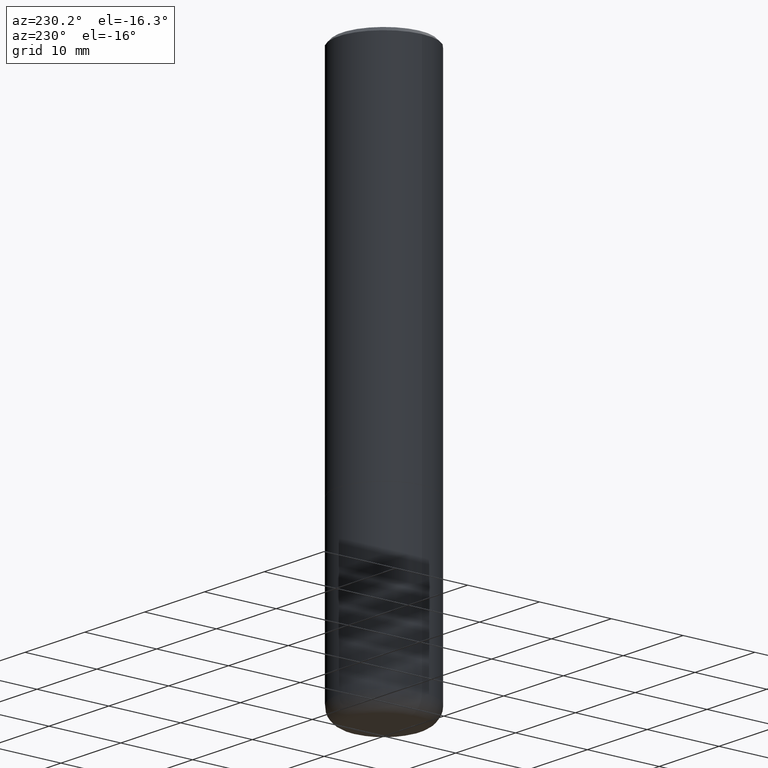
[diagram: clean part render]
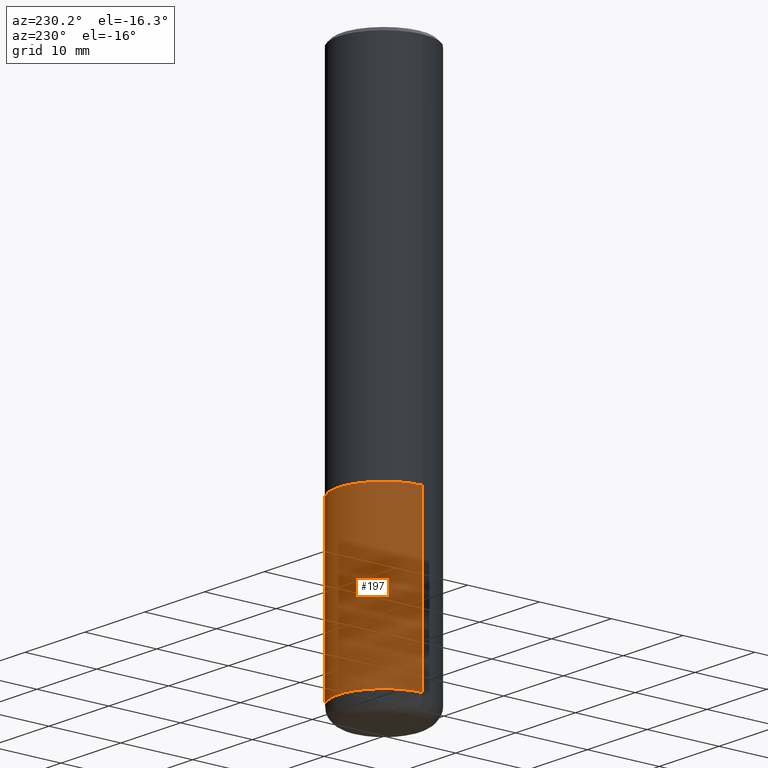
[diagram: same view with one face highlighted and labeled with its STEP entity id]
A machine part, auxiliary view. The second image highlights one B-rep face of the part: STEP entity #197.
In plain terms, the highlighted cylindrical surface (partial cylindrical patch) has radius 6.35 mm, axis along (-0, 0, 1).
Its self-contained STEP definition (entity closure, byte-faithful):
#2 = CYLINDRICAL_SURFACE ( 'NONE', #398, 0.2500000000000000000 ) ;
#3 = ORIENTED_EDGE ( 'NONE', *, *, #384, .T. ) ;
#18 = CARTESIAN_POINT ( 'NONE',  ( -0.2500000000000000000, 1.776356839400250465E-15, -1.229733772563726445E-29 ) ) ;
#44 = CARTESIAN_POINT ( 'NONE',  ( 0.2499999999999998335, -1.190595136545512292E-14, -2.910000000000000586 ) ) ;
#59 = CIRCLE ( 'NONE', #98, 0.2500000000000000000 ) ;
#64 = CIRCLE ( 'NONE', #417, 0.2500000000000000000 ) ;
#74 = CARTESIAN_POINT ( 'NONE',  ( 4.890937612370273754E-29, -6.982962677686291954E-15, -2.000000000000000444 ) ) ;
#83 = ORIENTED_EDGE ( 'NONE', *, *, #352, .T. ) ;
#98 = AXIS2_PLACEMENT_3D ( 'NONE', #74, #209, #400 ) ;
#106 = VECTOR ( 'NONE', #329, 39.37007874015748143 ) ;
#108 = DIRECTION ( 'NONE',  ( -2.445468806185136877E-29, 3.491481338843145188E-15, 1.000000000000000000 ) ) ;
#117 = VERTEX_POINT ( 'NONE', #130 ) ;
#125 = CARTESIAN_POINT ( 'NONE',  ( 0.2500000000000000000, -1.745740669421566678E-15, 1.219044193948983948E-29 ) ) ;
#130 = CARTESIAN_POINT ( 'NONE',  ( -0.2500000000000000000, -6.795229847459672846E-15, -2.000000000000000444 ) ) ;
#173 = EDGE_CURVE ( 'NONE', #368, #237, #410, .T. ) ;
#179 = DIRECTION ( 'NONE',  ( 1.000000000000000000, -6.982962677686270655E-15, 0.000000000000000000 ) ) ;
#197 = ADVANCED_FACE ( 'NONE', ( #204 ), #2, .T. ) ;
#204 = FACE_OUTER_BOUND ( 'NONE', #235, .T. ) ;
#209 = DIRECTION ( 'NONE',  ( -2.445468806185136597E-29, 3.491481338843145583E-15, 1.000000000000000000 ) ) ;
#212 = CARTESIAN_POINT ( 'NONE',  ( 7.116314225998749245E-29, -1.016021069603355467E-14, -2.910000000000000586 ) ) ;
#235 = EDGE_LOOP ( 'NONE', ( #83, #3, #390, #406 ) ) ;
#237 = VERTEX_POINT ( 'NONE', #357 ) ;
#255 = DIRECTION ( 'NONE',  ( 1.000000000000000000, -6.982962677686266711E-15, 4.876176775795935793E-29 ) ) ;
#267 = VERTEX_POINT ( 'NONE', #386 ) ;
#329 = DIRECTION ( 'NONE',  ( -2.445468806185136877E-29, 3.491481338843145188E-15, 1.000000000000000000 ) ) ;
#352 = EDGE_CURVE ( 'NONE', #368, #267, #64, .T. ) ;
#355 = DIRECTION ( 'NONE',  ( -2.445468806185136597E-29, 3.491481338843145583E-15, 1.000000000000000000 ) ) ;
#357 = CARTESIAN_POINT ( 'NONE',  ( 0.2500000000000000000, -8.728703347107858632E-15, -2.000000000000000444 ) ) ;
#362 = VECTOR ( 'NONE', #108, 39.37007874015748143 ) ;
#363 = DIRECTION ( 'NONE',  ( -2.445468806185136597E-29, 3.491481338843145583E-15, 1.000000000000000000 ) ) ;
#365 = EDGE_CURVE ( 'NONE', #237, #117, #59, .T. ) ;
#368 = VERTEX_POINT ( 'NONE', #44 ) ;
#369 = LINE ( 'NONE', #18, #106 ) ;
#384 = EDGE_CURVE ( 'NONE', #267, #117, #369, .T. ) ;
#386 = CARTESIAN_POINT ( 'NONE',  ( -0.2499999999999998335, -8.383853856633305780E-15, -2.910000000000000586 ) ) ;
#390 = ORIENTED_EDGE ( 'NONE', *, *, #365, .F. ) ;
#391 = CARTESIAN_POINT ( 'NONE',  ( 0.000000000000000000, 0.000000000000000000, 0.000000000000000000 ) ) ;
#398 = AXIS2_PLACEMENT_3D ( 'NONE', #391, #355, #255 ) ;
#400 = DIRECTION ( 'NONE',  ( 1.000000000000000000, -6.982962677686266711E-15, 0.000000000000000000 ) ) ;
#406 = ORIENTED_EDGE ( 'NONE', *, *, #173, .F. ) ;
#410 = LINE ( 'NONE', #125, #362 ) ;
#417 = AXIS2_PLACEMENT_3D ( 'NONE', #212, #363, #179 ) ;